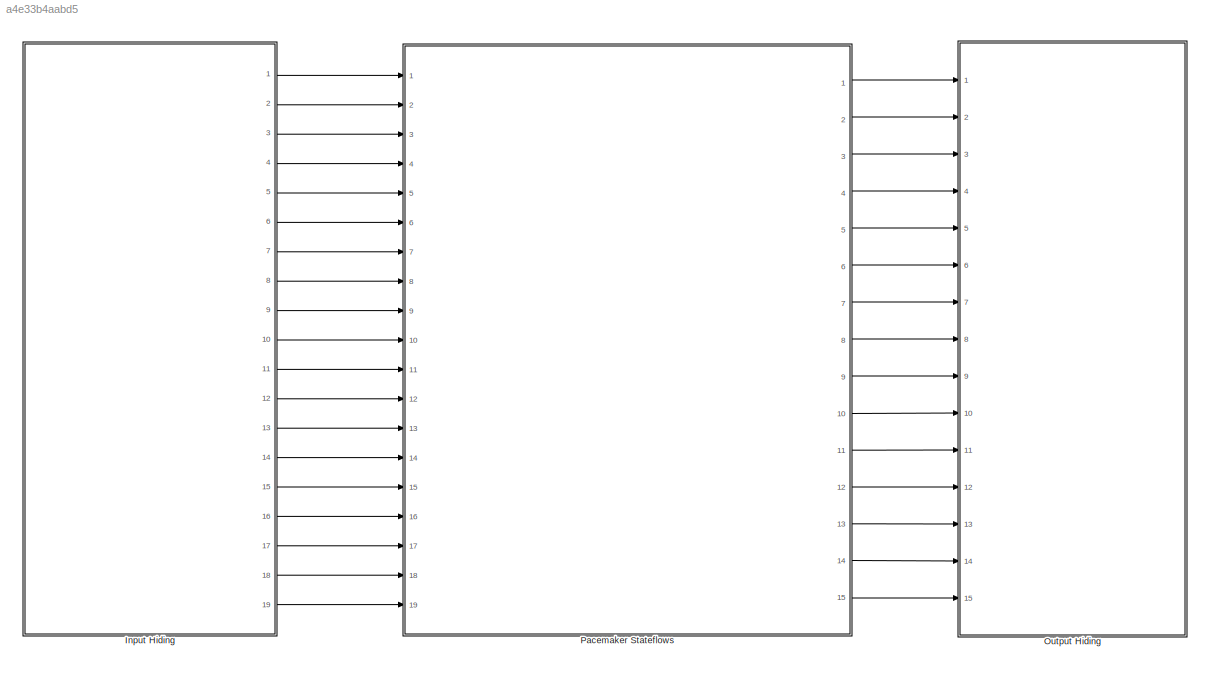
MODEL slx_a4e33b4aabd5
KIND model
CONFIG AbsTol = auto
CONFIG EnableMultiTasking = on
CONFIG FixedStep = 1e-3
CONFIG MaxStep = auto
CONFIG MinStep = auto
CONFIG RelTol = 1e-3
CONFIG SampleTimeConstraint = Unconstrained
CONFIG SolverName = FixedStepAuto
CONFIG StartTime = 0.0
CONFIG StopTime = 50
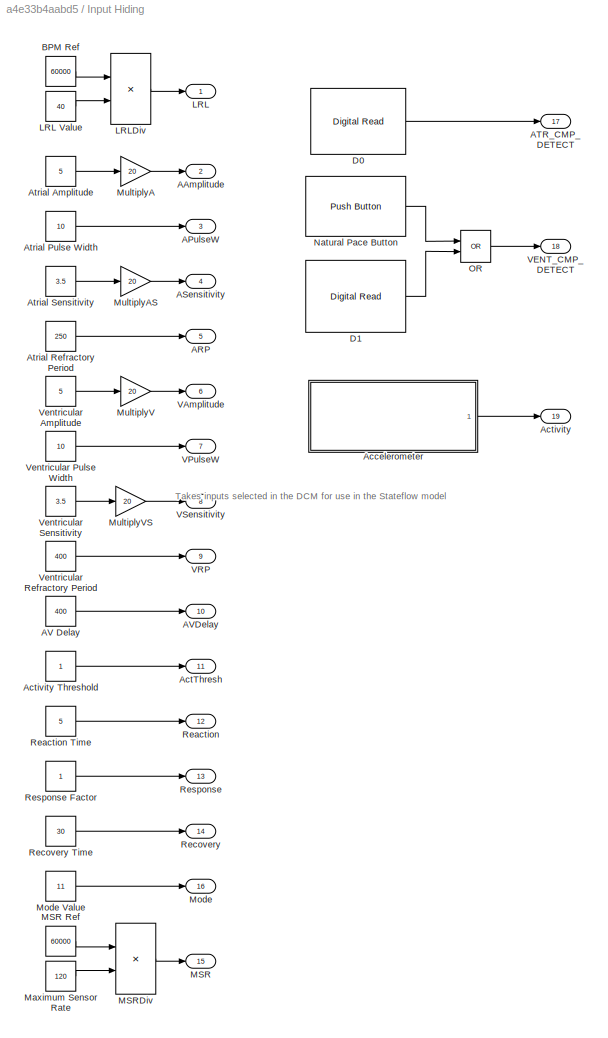
BLOCK [SubSystem] Input Hiding
  Ports = [0, 19]
  RequestExecContextInheritance = off
BLOCK [Outport] Input Hiding/AAmplitude
  OutDataTypeStr = uint16
  Port = 2
BLOCK [Outport] Input Hiding/APulseW
  OutDataTypeStr = uint16
  Port = 3
BLOCK [Outport] Input Hiding/ARP
  OutDataTypeStr = uint16
  Port = 5
BLOCK [Outport] Input Hiding/ASensitivity
  OutDataTypeStr = uint16
  Port = 4
BLOCK [Outport] Input Hiding/ATR_CMP_DETECT
  OutDataTypeStr = boolean
  Port = 17
BLOCK [Constant] Input Hiding/AV Delay
  NameLocation = left
  OutDataTypeStr = uint16
  Value = 400
BLOCK [Outport] Input Hiding/AVDelay
  OutDataTypeStr = uint16
  Port = 10
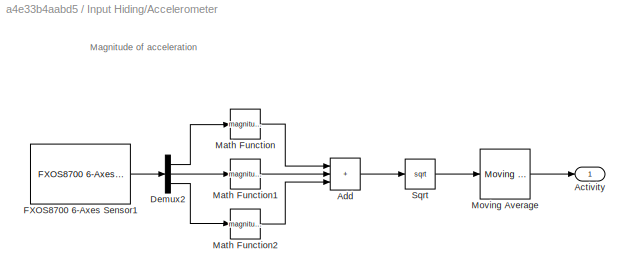
BLOCK [SubSystem] Input Hiding/Accelerometer
  Ports = [0, 1]
  RequestExecContextInheritance = off
BLOCK [Outport] Input Hiding/Accelerometer/Activity
  OutDataTypeStr = double
  SourceOfInitialOutputValue = Input signal
BLOCK [Sum] Input Hiding/Accelerometer/Add
  IconShape = rectangular
  Inputs = +++
  Ports = [3, 1]
BLOCK [Demux] Input Hiding/Accelerometer/Demux2
  Outputs = 3
  Ports = [1, 3]
BLOCK [Reference] Input Hiding/Accelerometer/FXOS8700 6-Axes Sensor1  REF=frdmk64flib/FXOS8700 6-Axes Sensor
  Ports = [0, 1]
  SourceBlock = frdmk64flib/FXOS8700 6-Axes Sensor
  SourceProductBaseCode = EC_FRDM_K64F
  SourceType = freedomk64f.fxos8700
BLOCK [Math] Input Hiding/Accelerometer/Math Function
  Operator = magnitude^2
  OutDataTypeStr = double
  Ports = [1, 1]
  SignedPower = on
BLOCK [Math] Input Hiding/Accelerometer/Math Function1
  Operator = magnitude^2
  OutDataTypeStr = double
  Ports = [1, 1]
  SignedPower = on
BLOCK [Math] Input Hiding/Accelerometer/Math Function2
  Operator = magnitude^2
  OutDataTypeStr = double
  Ports = [1, 1]
  SignedPower = on
BLOCK [Reference] Input Hiding/Accelerometer/Moving Average  REF=dspstat3/Moving
Average
  Ports = [1, 1]
  SourceBlock = dspstat3/Moving\nAverage
  SourceProductBaseCode = DS
  SourceType = dsp.simulink.MovingAverage
BLOCK [Sqrt] Input Hiding/Accelerometer/Sqrt
BLOCK [Outport] Input Hiding/ActThresh
  OutDataTypeStr = double
  Port = 11
BLOCK [Outport] Input Hiding/Activity
  OutDataTypeStr = double
  Port = 19
BLOCK [Constant] Input Hiding/Activity Threshold
  NameLocation = left
  OutDataTypeStr = double
BLOCK [Constant] Input Hiding/Atrial Amplitude
  NameLocation = left
  OutDataTypeStr = double
  Value = 5
BLOCK [Constant] Input Hiding/Atrial Pulse Width
  NameLocation = left
  OutDataTypeStr = uint16
  Value = 10
BLOCK [Constant] Input Hiding/Atrial Refractory Period
  NameLocation = left
  OutDataTypeStr = uint16
  Value = 250
BLOCK [Constant] Input Hiding/Atrial Sensitivity
  NameLocation = left
  OutDataTypeStr = double
  Value = 3.5
BLOCK [Constant] Input Hiding/BPM Ref
  NameLocation = left
  OutDataTypeStr = uint16
  Value = 60000
BLOCK [Reference] Input Hiding/D0  REF=frdmk64flib/Digital Read
  Ports = [0, 1]
  SourceBlock = frdmk64flib/Digital Read
  SourceProductBaseCode = EC_FRDM_K64F
  SourceType = freedomk64f.DigitalRead
BLOCK [Reference] Input Hiding/D1  REF=frdmk64flib/Digital Read
  Ports = [0, 1]
  SourceBlock = frdmk64flib/Digital Read
  SourceProductBaseCode = EC_FRDM_K64F
  SourceType = freedomk64f.DigitalRead
BLOCK [Outport] Input Hiding/LRL
  OutDataTypeStr = uint16
BLOCK [Constant] Input Hiding/LRL Value
  NameLocation = left
  OutDataTypeStr = uint16
  Value = 40
BLOCK [Product] Input Hiding/LRLDiv
  Inputs = */
  OutDataTypeStr = uint16
  Ports = [2, 1]
  RndMeth = Round
BLOCK [Outport] Input Hiding/MSR
  OutDataTypeStr = uint16
  Port = 15
BLOCK [Constant] Input Hiding/MSR Ref
  NameLocation = left
  OutDataTypeStr = uint16
  Value = 60000
BLOCK [Product] Input Hiding/MSRDiv
  Inputs = */
  OutDataTypeStr = uint16
  Ports = [2, 1]
  RndMeth = Round
BLOCK [Constant] Input Hiding/Maximum Sensor Rate
  NameLocation = left
  OutDataTypeStr = uint16
  Value = 120
BLOCK [Outport] Input Hiding/Mode
  OutDataTypeStr = uint16
  Port = 16
BLOCK [Constant] Input Hiding/Mode Value
  NameLocation = left
  OutDataTypeStr = uint16
  Value = 11
BLOCK [Gain] Input Hiding/MultiplyA
  Gain = 20
  OutDataTypeStr = uint16
BLOCK [Gain] Input Hiding/MultiplyAS
  Gain = 20
  OutDataTypeStr = uint16
BLOCK [Gain] Input Hiding/MultiplyV
  Gain = 20
  OutDataTypeStr = uint16
BLOCK [Gain] Input Hiding/MultiplyVS
  Gain = 20
  OutDataTypeStr = uint16
BLOCK [Reference] Input Hiding/Natural Pace Button  REF=frdmk64flib/Push Button
  Ports = [0, 1]
  SourceBlock = frdmk64flib/Push Button
  SourceProductBaseCode = EC_FRDM_K64F
  SourceType = freedomk64f.PushButton
BLOCK [Logic] Input Hiding/OR
  AllPortsSameDT = off
  IconShape = distinctive
  Operator = OR
  OutDataTypeStr = boolean
  Ports = [2, 1]
BLOCK [Outport] Input Hiding/Reaction
  OutDataTypeStr = uint16
  Port = 12
BLOCK [Constant] Input Hiding/Reaction Time
  NameLocation = left
  OutDataTypeStr = uint16
  Value = 5
BLOCK [Outport] Input Hiding/Recovery
  OutDataTypeStr = uint16
  Port = 14
BLOCK [Constant] Input Hiding/Recovery Time
  NameLocation = left
  OutDataTypeStr = uint16
  Value = 30
BLOCK [Outport] Input Hiding/Response
  OutDataTypeStr = uint16
  Port = 13
BLOCK [Constant] Input Hiding/Response Factor
  NameLocation = left
  OutDataTypeStr = uint16
BLOCK [Outport] Input Hiding/VAmplitude
  OutDataTypeStr = uint16
  Port = 6
BLOCK [Outport] Input Hiding/VENT_CMP_DETECT
  OutDataTypeStr = boolean
  Port = 18
BLOCK [Outport] Input Hiding/VPulseW
  OutDataTypeStr = uint16
  Port = 7
BLOCK [Outport] Input Hiding/VRP
  OutDataTypeStr = uint16
  Port = 9
BLOCK [Outport] Input Hiding/VSensitivity
  OutDataTypeStr = uint16
  Port = 8
BLOCK [Constant] Input Hiding/Ventricular Amplitude
  NameLocation = left
  OutDataTypeStr = double
  Value = 5
BLOCK [Constant] Input Hiding/Ventricular Pulse Width
  NameLocation = left
  OutDataTypeStr = uint16
  Value = 10
BLOCK [Constant] Input Hiding/Ventricular Refractory Period
  NameLocation = left
  OutDataTypeStr = uint16
  Value = 400
BLOCK [Constant] Input Hiding/Ventricular Sensitivity
  NameLocation = left
  OutDataTypeStr = double
  Value = 3.5
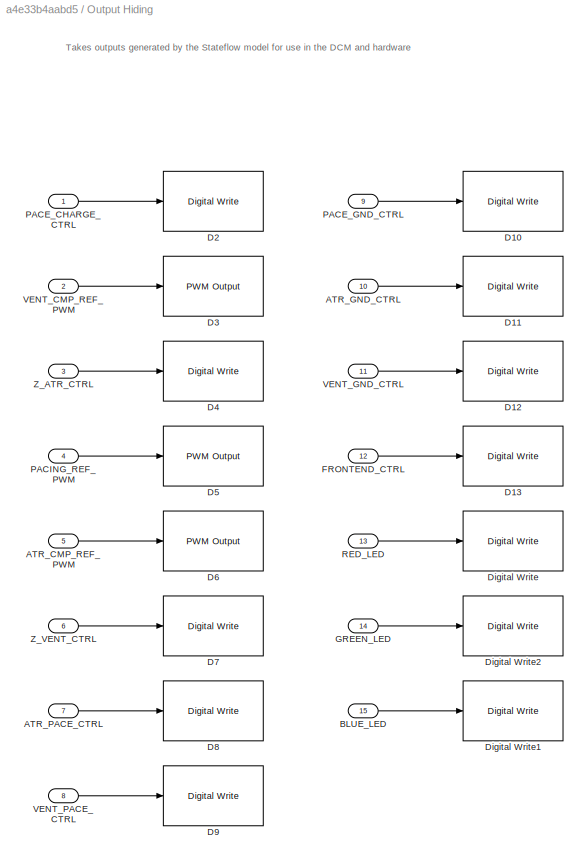
BLOCK [SubSystem] Output Hiding
  Ports = [15]
  RequestExecContextInheritance = off
BLOCK [Inport] Output Hiding/ATR_CMP_REF_PWM
  OutDataTypeStr = uint16
  Port = 5
BLOCK [Inport] Output Hiding/ATR_GND_CTRL
  OutDataTypeStr = uint16
  Port = 10
BLOCK [Inport] Output Hiding/ATR_PACE_CTRL
  OutDataTypeStr = uint16
  Port = 7
BLOCK [Inport] Output Hiding/BLUE_LED
  OutDataTypeStr = uint16
  Port = 15
BLOCK [Reference] Output Hiding/D10  REF=frdmk64flib/Digital Write
  Ports = [1]
  SourceBlock = frdmk64flib/Digital Write
  SourceProductBaseCode = EC_FRDM_K64F
  SourceType = freedomk64f.DigitalWrite
BLOCK [Reference] Output Hiding/D11  REF=frdmk64flib/Digital Write
  Ports = [1]
  SourceBlock = frdmk64flib/Digital Write
  SourceProductBaseCode = EC_FRDM_K64F
  SourceType = freedomk64f.DigitalWrite
BLOCK [Reference] Output Hiding/D12  REF=frdmk64flib/Digital Write
  Ports = [1]
  SourceBlock = frdmk64flib/Digital Write
  SourceProductBaseCode = EC_FRDM_K64F
  SourceType = freedomk64f.DigitalWrite
BLOCK [Reference] Output Hiding/D13  REF=frdmk64flib/Digital Write
  Ports = [1]
  SourceBlock = frdmk64flib/Digital Write
  SourceProductBaseCode = EC_FRDM_K64F
  SourceType = freedomk64f.DigitalWrite
BLOCK [Reference] Output Hiding/D2  REF=frdmk64flib/Digital Write
  Ports = [1]
  SourceBlock = frdmk64flib/Digital Write
  SourceProductBaseCode = EC_FRDM_K64F
  SourceType = freedomk64f.DigitalWrite
BLOCK [Reference] Output Hiding/D3  REF=frdmk64flib/PWM Output
  Ports = [1]
  SourceBlock = frdmk64flib/PWM Output
  SourceProductBaseCode = EC_FRDM_K64F
  SourceType = freedomk64f.PWMOutput
BLOCK [Reference] Output Hiding/D4  REF=frdmk64flib/Digital Write
  Ports = [1]
  SourceBlock = frdmk64flib/Digital Write
  SourceProductBaseCode = EC_FRDM_K64F
  SourceType = freedomk64f.DigitalWrite
BLOCK [Reference] Output Hiding/D5  REF=frdmk64flib/PWM Output
  Ports = [1]
  SourceBlock = frdmk64flib/PWM Output
  SourceProductBaseCode = EC_FRDM_K64F
  SourceType = freedomk64f.PWMOutput
BLOCK [Reference] Output Hiding/D6  REF=frdmk64flib/PWM Output
  Ports = [1]
  SourceBlock = frdmk64flib/PWM Output
  SourceProductBaseCode = EC_FRDM_K64F
  SourceType = freedomk64f.PWMOutput
BLOCK [Reference] Output Hiding/D7  REF=frdmk64flib/Digital Write
  Ports = [1]
  SourceBlock = frdmk64flib/Digital Write
  SourceProductBaseCode = EC_FRDM_K64F
  SourceType = freedomk64f.DigitalWrite
BLOCK [Reference] Output Hiding/D8   REF=frdmk64flib/Digital Write
  Ports = [1]
  SourceBlock = frdmk64flib/Digital Write
  SourceProductBaseCode = EC_FRDM_K64F
  SourceType = freedomk64f.DigitalWrite
BLOCK [Reference] Output Hiding/D9  REF=frdmk64flib/Digital Write
  Ports = [1]
  SourceBlock = frdmk64flib/Digital Write
  SourceProductBaseCode = EC_FRDM_K64F
  SourceType = freedomk64f.DigitalWrite
BLOCK [Reference] Output Hiding/Digital Write  REF=frdmk64flib/Digital Write
  Ports = [1]
  SourceBlock = frdmk64flib/Digital Write
  SourceProductBaseCode = EC_FRDM_K64F
  SourceType = freedomk64f.DigitalWrite
BLOCK [Reference] Output Hiding/Digital Write1  REF=frdmk64flib/Digital Write
  Ports = [1]
  SourceBlock = frdmk64flib/Digital Write
  SourceProductBaseCode = EC_FRDM_K64F
  SourceType = freedomk64f.DigitalWrite
BLOCK [Reference] Output Hiding/Digital Write2  REF=frdmk64flib/Digital Write
  Ports = [1]
  SourceBlock = frdmk64flib/Digital Write
  SourceProductBaseCode = EC_FRDM_K64F
  SourceType = freedomk64f.DigitalWrite
BLOCK [Inport] Output Hiding/FRONTEND_CTRL
  OutDataTypeStr = uint16
  Port = 12
BLOCK [Inport] Output Hiding/GREEN_LED
  OutDataTypeStr = uint16
  Port = 14
BLOCK [Inport] Output Hiding/PACE_CHARGE_CTRL
  OutDataTypeStr = uint16
BLOCK [Inport] Output Hiding/PACE_GND_CTRL
  OutDataTypeStr = uint16
  Port = 9
BLOCK [Inport] Output Hiding/PACING_REF_PWM
  OutDataTypeStr = uint16
  Port = 4
BLOCK [Inport] Output Hiding/RED_LED
  OutDataTypeStr = uint16
  Port = 13
BLOCK [Inport] Output Hiding/VENT_CMP_REF_PWM
  OutDataTypeStr = uint16
  Port = 2
BLOCK [Inport] Output Hiding/VENT_GND_CTRL
  OutDataTypeStr = uint16
  Port = 11
BLOCK [Inport] Output Hiding/VENT_PACE_CTRL
  OutDataTypeStr = uint16
  Port = 8
BLOCK [Inport] Output Hiding/Z_ATR_CTRL
  OutDataTypeStr = uint16
  Port = 3
BLOCK [Inport] Output Hiding/Z_VENT_CTRL
  OutDataTypeStr = uint16
  Port = 6
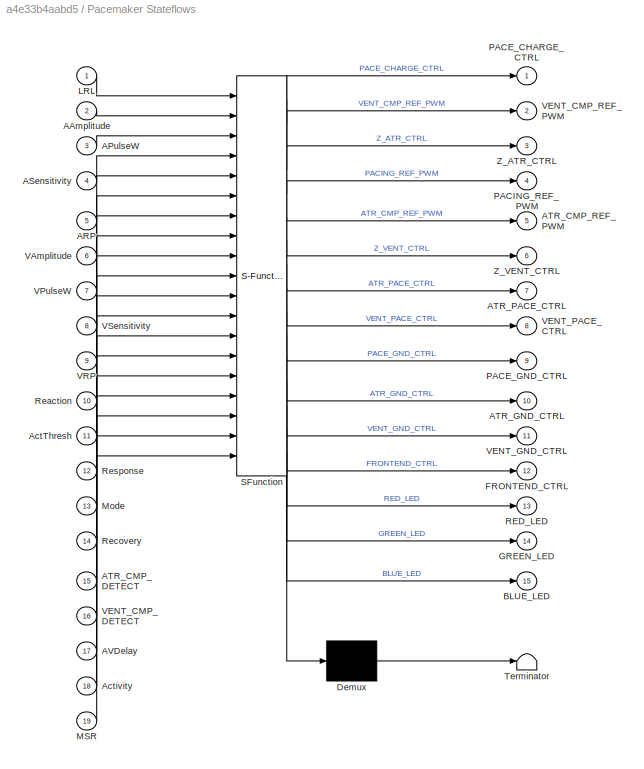
BLOCK [SubSystem] Pacemaker Stateflows
  ErrorFcn = Stateflow.Translate.translate
  PermitHierarchicalResolution = ExplicitOnly
  PortSchema = {"entries":[{"content":{"sides":[{"content":{"connectorIds":["In1","In2","In3","In4","In5","In6","In7","In8","In9","In17","In11","In10","In12","In14","In19","In13","In15","In16","In18"]},"type":"ConnectorPlacement.EquallySpacedRectSide","uuid":"6f24296b-9994-4871-8227-e053a3629335"},{"content":{"connectorIds":["Out1","Out2","Out3","Out4","Out5","Out6","Out7","Out8","Out9","Out10","Out11","Out12","...<+462ch>
  Ports = [19, 15]
  RequestExecContextInheritance = off
  SFBlockType = Chart
  TreatAsAtomicUnit = on
BLOCK [Demux] Pacemaker Stateflows/ Demux 
  Outputs = 1
  Ports = [1, 1]
BLOCK [S-Function] Pacemaker Stateflows/ SFunction 
  EnableBusSupport = on
  FunctionName = sf_sfun
  PortCounts = [19 16]
  Ports = [19, 16]
  SFcnIsStateOwnerBlock = off
  SFunctionDeploymentMode = off
  Tag = Stateflow S-Function 3
BLOCK [Terminator] Pacemaker Stateflows/ Terminator 
BLOCK [Inport] Pacemaker Stateflows/AAmplitude
  Port = 2
BLOCK [Inport] Pacemaker Stateflows/APulseW
  Port = 3
BLOCK [Inport] Pacemaker Stateflows/ARP
  Port = 5
BLOCK [Inport] Pacemaker Stateflows/ASensitivity
  Port = 4
BLOCK [Inport] Pacemaker Stateflows/ATR_CMP_DETECT
  Port = 15
BLOCK [Outport] Pacemaker Stateflows/ATR_CMP_REF_PWM
  Port = 5
BLOCK [Outport] Pacemaker Stateflows/ATR_GND_CTRL
  Port = 10
BLOCK [Outport] Pacemaker Stateflows/ATR_PACE_CTRL
  Port = 7
BLOCK [Inport] Pacemaker Stateflows/AVDelay
  Port = 17
BLOCK [Inport] Pacemaker Stateflows/ActThresh
  Port = 11
BLOCK [Inport] Pacemaker Stateflows/Activity
  Port = 18
BLOCK [Outport] Pacemaker Stateflows/BLUE_LED
  Port = 15
BLOCK [Outport] Pacemaker Stateflows/FRONTEND_CTRL
  Port = 12
BLOCK [Outport] Pacemaker Stateflows/GREEN_LED
  Port = 14
BLOCK [Inport] Pacemaker Stateflows/LRL
BLOCK [Inport] Pacemaker Stateflows/MSR
  Port = 19
BLOCK [Inport] Pacemaker Stateflows/Mode
  Port = 13
BLOCK [Outport] Pacemaker Stateflows/PACE_CHARGE_CTRL
BLOCK [Outport] Pacemaker Stateflows/PACE_GND_CTRL
  Port = 9
BLOCK [Outport] Pacemaker Stateflows/PACING_REF_PWM
  Port = 4
BLOCK [Outport] Pacemaker Stateflows/RED_LED
  Port = 13
BLOCK [Inport] Pacemaker Stateflows/Reaction
  Port = 10
BLOCK [Inport] Pacemaker Stateflows/Recovery
  Port = 14
BLOCK [Inport] Pacemaker Stateflows/Response
  Port = 12
BLOCK [Inport] Pacemaker Stateflows/VAmplitude
  Port = 6
BLOCK [Inport] Pacemaker Stateflows/VENT_CMP_DETECT
  Port = 16
BLOCK [Outport] Pacemaker Stateflows/VENT_CMP_REF_PWM
  Port = 2
BLOCK [Outport] Pacemaker Stateflows/VENT_GND_CTRL
  Port = 11
BLOCK [Outport] Pacemaker Stateflows/VENT_PACE_CTRL
  Port = 8
BLOCK [Inport] Pacemaker Stateflows/VPulseW
  Port = 7
BLOCK [Inport] Pacemaker Stateflows/VRP
  Port = 9
BLOCK [Inport] Pacemaker Stateflows/VSensitivity
  Port = 8
BLOCK [Outport] Pacemaker Stateflows/Z_ATR_CTRL
  Port = 3
BLOCK [Outport] Pacemaker Stateflows/Z_VENT_CTRL
  Port = 6
ANNOTATION Input Hiding: Takes inputs selected in the DCM for use in the Stateflow model
ANNOTATION Input Hiding/Accelerometer: Magnitude of acceleration
ANNOTATION Output Hiding: Takes outputs generated by the Stateflow model for use in the DCM and hardware
LINE Input Hiding/AV Delay:1 -> Input Hiding/AVDelay:1
LINE Input Hiding/Accelerometer/Add:1 -> Input Hiding/Accelerometer/Sqrt:1
LINE Input Hiding/Accelerometer/Demux2:1 -> Input Hiding/Accelerometer/Math Function:1
LINE Input Hiding/Accelerometer/Demux2:2 -> Input Hiding/Accelerometer/Math Function1:1
LINE Input Hiding/Accelerometer/Demux2:3 -> Input Hiding/Accelerometer/Math Function2:1
LINE Input Hiding/Accelerometer/FXOS8700 6-Axes Sensor1:1 -> Input Hiding/Accelerometer/Demux2:1
LINE Input Hiding/Accelerometer/Math Function1:1 -> Input Hiding/Accelerometer/Add:2
LINE Input Hiding/Accelerometer/Math Function2:1 -> Input Hiding/Accelerometer/Add:3
LINE Input Hiding/Accelerometer/Math Function:1 -> Input Hiding/Accelerometer/Add:1
LINE Input Hiding/Accelerometer/Moving Average:1 -> Input Hiding/Accelerometer/Activity:1
LINE Input Hiding/Accelerometer/Sqrt:1 -> Input Hiding/Accelerometer/Moving Average:1
LINE Input Hiding/Accelerometer:1 -> Input Hiding/Activity:1
LINE Input Hiding/Activity Threshold:1 -> Input Hiding/ActThresh:1
LINE Input Hiding/Atrial Amplitude:1 -> Input Hiding/MultiplyA:1
LINE Input Hiding/Atrial Pulse Width:1 -> Input Hiding/APulseW:1
LINE Input Hiding/Atrial Refractory Period:1 -> Input Hiding/ARP:1
LINE Input Hiding/Atrial Sensitivity:1 -> Input Hiding/MultiplyAS:1
LINE Input Hiding/BPM Ref:1 -> Input Hiding/LRLDiv:1
LINE Input Hiding/D0:1 -> Input Hiding/ATR_CMP_DETECT:1
LINE Input Hiding/D1:1 -> Input Hiding/OR:2
LINE Input Hiding/LRL Value:1 -> Input Hiding/LRLDiv:2
LINE Input Hiding/LRLDiv:1 -> Input Hiding/LRL:1
LINE Input Hiding/MSR Ref:1 -> Input Hiding/MSRDiv:1
LINE Input Hiding/MSRDiv:1 -> Input Hiding/MSR:1
LINE Input Hiding/Maximum Sensor Rate:1 -> Input Hiding/MSRDiv:2
LINE Input Hiding/Mode Value:1 -> Input Hiding/Mode:1
LINE Input Hiding/MultiplyA:1 -> Input Hiding/AAmplitude:1
LINE Input Hiding/MultiplyAS:1 -> Input Hiding/ASensitivity:1
LINE Input Hiding/MultiplyV:1 -> Input Hiding/VAmplitude:1
LINE Input Hiding/MultiplyVS:1 -> Input Hiding/VSensitivity:1
LINE Input Hiding/Natural Pace Button:1 -> Input Hiding/OR:1
LINE Input Hiding/OR:1 -> Input Hiding/VENT_CMP_DETECT:1
LINE Input Hiding/Reaction Time:1 -> Input Hiding/Reaction:1
LINE Input Hiding/Recovery Time:1 -> Input Hiding/Recovery:1
LINE Input Hiding/Response Factor:1 -> Input Hiding/Response:1
LINE Input Hiding/Ventricular Amplitude:1 -> Input Hiding/MultiplyV:1
LINE Input Hiding/Ventricular Pulse Width:1 -> Input Hiding/VPulseW:1
LINE Input Hiding/Ventricular Refractory Period:1 -> Input Hiding/VRP:1
LINE Input Hiding/Ventricular Sensitivity:1 -> Input Hiding/MultiplyVS:1
LINE Input Hiding:1 -> Pacemaker Stateflows:1
LINE Input Hiding:10 -> Pacemaker Stateflows:17
LINE Input Hiding:11 -> Pacemaker Stateflows:11
LINE Input Hiding:12 -> Pacemaker Stateflows:10
LINE Input Hiding:13 -> Pacemaker Stateflows:12
LINE Input Hiding:14 -> Pacemaker Stateflows:14
LINE Input Hiding:15 -> Pacemaker Stateflows:19
LINE Input Hiding:16 -> Pacemaker Stateflows:13
LINE Input Hiding:17 -> Pacemaker Stateflows:15
LINE Input Hiding:18 -> Pacemaker Stateflows:16
LINE Input Hiding:19 -> Pacemaker Stateflows:18
LINE Input Hiding:2 -> Pacemaker Stateflows:2
LINE Input Hiding:3 -> Pacemaker Stateflows:3
LINE Input Hiding:4 -> Pacemaker Stateflows:4
LINE Input Hiding:5 -> Pacemaker Stateflows:5
LINE Input Hiding:6 -> Pacemaker Stateflows:6
LINE Input Hiding:7 -> Pacemaker Stateflows:7
LINE Input Hiding:8 -> Pacemaker Stateflows:8
LINE Input Hiding:9 -> Pacemaker Stateflows:9
LINE Output Hiding/ATR_CMP_REF_PWM:1 -> Output Hiding/D6:1
LINE Output Hiding/ATR_GND_CTRL:1 -> Output Hiding/D11:1
LINE Output Hiding/ATR_PACE_CTRL:1 -> Output Hiding/D8 :1
LINE Output Hiding/BLUE_LED:1 -> Output Hiding/Digital Write1:1
LINE Output Hiding/FRONTEND_CTRL:1 -> Output Hiding/D13:1
LINE Output Hiding/GREEN_LED:1 -> Output Hiding/Digital Write2:1
LINE Output Hiding/PACE_CHARGE_CTRL:1 -> Output Hiding/D2:1
LINE Output Hiding/PACE_GND_CTRL:1 -> Output Hiding/D10:1
LINE Output Hiding/PACING_REF_PWM:1 -> Output Hiding/D5:1
LINE Output Hiding/RED_LED:1 -> Output Hiding/Digital Write:1
LINE Output Hiding/VENT_CMP_REF_PWM:1 -> Output Hiding/D3:1
LINE Output Hiding/VENT_GND_CTRL:1 -> Output Hiding/D12:1
LINE Output Hiding/VENT_PACE_CTRL:1 -> Output Hiding/D9:1
LINE Output Hiding/Z_ATR_CTRL:1 -> Output Hiding/D4:1
LINE Output Hiding/Z_VENT_CTRL:1 -> Output Hiding/D7:1
LINE Pacemaker Stateflows:1 -> Output Hiding:1
LINE Pacemaker Stateflows:10 -> Output Hiding:10
LINE Pacemaker Stateflows:11 -> Output Hiding:11
LINE Pacemaker Stateflows:12 -> Output Hiding:12
LINE Pacemaker Stateflows:13 -> Output Hiding:13
LINE Pacemaker Stateflows:14 -> Output Hiding:14
LINE Pacemaker Stateflows:15 -> Output Hiding:15
LINE Pacemaker Stateflows:2 -> Output Hiding:2
LINE Pacemaker Stateflows:3 -> Output Hiding:3
LINE Pacemaker Stateflows:4 -> Output Hiding:4
LINE Pacemaker Stateflows:5 -> Output Hiding:5
LINE Pacemaker Stateflows:6 -> Output Hiding:6
LINE Pacemaker Stateflows:7 -> Output Hiding:7
LINE Pacemaker Stateflows:8 -> Output Hiding:8
LINE Pacemaker Stateflows:9 -> Output Hiding:9
CHART Pacemaker Stateflows states=117 transitions=135
  STATE_LABEL '<!DOCTYPE HTML PUBLIC "-//W3C//DTD HTML 4.0//EN" "http://www.w3.org/TR/REC-html40/strict.dtd">\n<html><head><meta name="qrichtext" content="1" /><style type="text/css">\np, li { white-space: pre-wrap; }\n</style></head><body align="left" style=" font-family:\'Helvetica\'; font-size:12px; font-weight:400; font-style:normal;">\n<p align="left" style=" margin-top:0px; margin-bottom:0px; margin-left:0px; ma...<+179ch>'
  STATE_LABEL 'AOO\nentry:\nVENT_PACE_CTRL = 0; VENT_GND_CTRL = 0; PACE_GND_CTRL = 1;\nZ_VENT_CTRL = 0; Z_ATR_CTRL = 0;\nduring: PACING_REF_PWM = AAmplitude;\n'
  STATE_LABEL '<!DOCTYPE HTML PUBLIC "-//W3C//DTD HTML 4.0//EN" "http://www.w3.org/TR/REC-html40/strict.dtd">\n<html><head><meta name="qrichtext" content="1" /><style type="text/css">\np, li { white-space: pre-wrap; }\n</style></head><body align="left" style=" font-family:\'Helvetica\'; font-size:12px; font-weight:400; font-style:normal;">\n<p align="left" style=" margin-top:0px; margin-bottom:0px; margin-left:0px; ma...<+142ch>'
  STATE_LABEL 'PACE_ATR\nentry:\nPACE_CHARGE_CTRL = 0;\nATR_GND_CTRL = 0;\nATR_PACE_CTRL = 1;\nRED_LED = 1;'
  STATE_LABEL 'C22_CHARGE\nentry:\nPACE_CHARGE_CTRL = 1;\nATR_PACE_CTRL = 0;\nATR_GND_CTRL = 1;\nRED_LED = 0;'
  STATE_LABEL '<!DOCTYPE HTML PUBLIC "-//W3C//DTD HTML 4.0//EN" "http://www.w3.org/TR/REC-html40/strict.dtd">\n<html><head><meta name="qrichtext" content="1" /><style type="text/css">\np, li { white-space: pre-wrap; }\n</style></head><body align="left" style=" font-family:\'Helvetica\'; font-size:12px; font-weight:400; font-style:normal;">\n<p align="left" style=" margin-top:0px; margin-bottom:0px; margin-left:0px; ma...<+150ch>'
  STATE_LABEL '<!DOCTYPE HTML PUBLIC "-//W3C//DTD HTML 4.0//EN" "http://www.w3.org/TR/REC-html40/strict.dtd">\n<html><head><meta name="qrichtext" content="1" /><style type="text/css">\np, li { white-space: pre-wrap; }\n</style></head><body align="left" style=" font-family:\'Helvetica\'; font-size:12px; font-weight:400; font-style:normal;">\n<p align="left" style=" margin-top:0px; margin-bottom:0px; margin-left:0px; ma...<+359ch>'
  STATE_LABEL 'after(APulseW,msec)'
  STATE_LABEL 'after(LRL-APulseW,msec)'
  STATE_LABEL '<!DOCTYPE HTML PUBLIC "-//W3C//DTD HTML 4.0//EN" "http://www.w3.org/TR/REC-html40/strict.dtd">\n<html><head><meta name="qrichtext" content="1" /><style type="text/css">\np, li { white-space: pre-wrap; }\n</style></head><body align="left" style=" font-family:\'Helvetica\'; font-size:12px; font-weight:400; font-style:normal;">\n<p align="left" style=" margin-top:0px; margin-bottom:0px; margin-left:0px; ma...<+142ch>'
  STATE_LABEL 'PACE_ATR\nentry:\nPACE_CHARGE_CTRL = 0;\nATR_GND_CTRL = 0;\nATR_PACE_CTRL = 1;\nRED_LED = 1;'
  STATE_LABEL 'C22_CHARGE\nentry:\nPACE_CHARGE_CTRL = 1;\nATR_PACE_CTRL = 0;\nATR_GND_CTRL = 1;\nRED_LED = 0;'
  STATE_LABEL '<!DOCTYPE HTML PUBLIC "-//W3C//DTD HTML 4.0//EN" "http://www.w3.org/TR/REC-html40/strict.dtd">\n<html><head><meta name="qrichtext" content="1" /><style type="text/css">\np, li { white-space: pre-wrap; }\n</style></head><body align="left" style=" font-family:\'Helvetica\'; font-size:12px; font-weight:400; font-style:normal;">\n<p align="left" style=" margin-top:0px; margin-bottom:0px; margin-left:0px; ma...<+150ch>'
  STATE_LABEL '<!DOCTYPE HTML PUBLIC "-//W3C//DTD HTML 4.0//EN" "http://www.w3.org/TR/REC-html40/strict.dtd">\n<html><head><meta name="qrichtext" content="1" /><style type="text/css">\np, li { white-space: pre-wrap; }\n</style></head><body align="left" style=" font-family:\'Helvetica\'; font-size:12px; font-weight:400; font-style:normal;">\n<p align="left" style=" margin-top:0px; margin-bottom:0px; margin-left:0px; ma...<+359ch>'
  STATE_LABEL 'MODE_SELECTION\nentry:\nGREEN_LED = 0;\nRED_LED = 0;\nBLUE_LED = 0;\nFRONTEND_CTRL = 0;\nPACING_REF_PWM = 0;\nATR_CMP_REF_PWM = 0;\nVENT_CMP_REF_PWM = 0;\nPACE_CHARGE_CTRL= 0;\nPACE_GND_CTRL= 0;\nATR_PACE_CTRL = 0;\nATR_GND_CTRL = 0;\nVENT_PACE_CTRL = 0;\nVENT_GND_CTRL = 0;\nZ_ATR_CTRL = 0;\nZ_VENT_CTRL = 0;'
  STATE_LABEL '<!DOCTYPE HTML PUBLIC "-//W3C//DTD HTML 4.0//EN" "http://www.w3.org/TR/REC-html40/strict.dtd">\n<html><head><meta name="qrichtext" content="1" /><style type="text/css">\np, li { white-space: pre-wrap; }\n</style></head><body align="left" style=" font-family:\'Helvetica\'; font-size:12px; font-weight:400; font-style:normal;">\n<p align="left" style=" margin-top:0px; margin-bottom:0px; margin-left:0px; ma...<+357ch>'
  STATE_LABEL '<!DOCTYPE HTML PUBLIC "-//W3C//DTD HTML 4.0//EN" "http://www.w3.org/TR/REC-html40/strict.dtd">\n<html><head><meta name="qrichtext" content="1" /><style type="text/css">\np, li { white-space: pre-wrap; }\n</style></head><body align="left" style=" font-family:\'Helvetica\'; font-size:12px; font-weight:400; font-style:normal;">\n<p align="left" style=" margin-top:0px; margin-bottom:0px; margin-left:0px; ma...<+357ch>'
  STATE_LABEL 'VOO\nentry:\nATR_PACE_CTRL = 0; ATR_GND_CTRL = 0; PACE_GND_CTRL = 1;\nZ_ATR_CTRL = 0; Z_VENT_CTRL = 0;\nduring: PACING_REF_PWM = VAmplitude;'
  STATE_LABEL '<!DOCTYPE HTML PUBLIC "-//W3C//DTD HTML 4.0//EN" "http://www.w3.org/TR/REC-html40/strict.dtd">\n<html><head><meta name="qrichtext" content="1" /><style type="text/css">\np, li { white-space: pre-wrap; }\n</style></head><body align="left" style=" font-family:\'Helvetica\'; font-size:12px; font-weight:400; font-style:normal;">\n<p align="left" style=" margin-top:0px; margin-bottom:0px; margin-left:0px; ma...<+141ch>'
  STATE_LABEL 'PACE_VENT\nentry:\nPACE_CHARGE_CTRL = 0;\nVENT_GND_CTRL = 0;\nVENT_PACE_CTRL = 1;\nBLUE_LED = 1;'
  STATE_LABEL 'C22_CHARGE\nentry:\nVENT_PACE_CTRL = 0;\nVENT_GND_CTRL = 1;\nPACE_CHARGE_CTRL = 1;\nBLUE_LED = 0;'
  STATE_LABEL '<!DOCTYPE HTML PUBLIC "-//W3C//DTD HTML 4.0//EN" "http://www.w3.org/TR/REC-html40/strict.dtd">\n<html><head><meta name="qrichtext" content="1" /><style type="text/css">\np, li { white-space: pre-wrap; }\n</style></head><body align="left" style=" font-family:\'Helvetica\'; font-size:12px; font-weight:400; font-style:normal;">\n<p align="left" style=" margin-top:0px; margin-bottom:0px; margin-left:0px; ma...<+140ch>'
  STATE_LABEL '<!DOCTYPE HTML PUBLIC "-//W3C//DTD HTML 4.0//EN" "http://www.w3.org/TR/REC-html40/strict.dtd">\n<html><head><meta name="qrichtext" content="1" /><style type="text/css">\np, li { white-space: pre-wrap; }\n</style></head><body align="left" style=" font-family:\'Helvetica\'; font-size:12px; font-weight:400; font-style:normal;">\n<p align="left" style=" margin-top:0px; margin-bottom:0px; margin-left:0px; ma...<+360ch>'
  STATE_LABEL 'after(VPulseW,msec)'
  STATE_LABEL 'after(LRL-VPulseW,msec)'
  STATE_LABEL '<!DOCTYPE HTML PUBLIC "-//W3C//DTD HTML 4.0//EN" "http://www.w3.org/TR/REC-html40/strict.dtd">\n<html><head><meta name="qrichtext" content="1" /><style type="text/css">\np, li { white-space: pre-wrap; }\n</style></head><body align="left" style=" font-family:\'Helvetica\'; font-size:12px; font-weight:400; font-style:normal;">\n<p align="left" style=" margin-top:0px; margin-bottom:0px; margin-left:0px; ma...<+141ch>'
  STATE_LABEL 'PACE_VENT\nentry:\nPACE_CHARGE_CTRL = 0;\nVENT_GND_CTRL = 0;\nVENT_PACE_CTRL = 1;\nBLUE_LED = 1;'
  STATE_LABEL 'C22_CHARGE\nentry:\nVENT_PACE_CTRL = 0;\nVENT_GND_CTRL = 1;\nPACE_CHARGE_CTRL = 1;\nBLUE_LED = 0;'
  STATE_LABEL '<!DOCTYPE HTML PUBLIC "-//W3C//DTD HTML 4.0//EN" "http://www.w3.org/TR/REC-html40/strict.dtd">\n<html><head><meta name="qrichtext" content="1" /><style type="text/css">\np, li { white-space: pre-wrap; }\n</style></head><body align="left" style=" font-family:\'Helvetica\'; font-size:12px; font-weight:400; font-style:normal;">\n<p align="left" style=" margin-top:0px; margin-bottom:0px; margin-left:0px; ma...<+140ch>'
  STATE_LABEL '<!DOCTYPE HTML PUBLIC "-//W3C//DTD HTML 4.0//EN" "http://www.w3.org/TR/REC-html40/strict.dtd">\n<html><head><meta name="qrichtext" content="1" /><style type="text/css">\np, li { white-space: pre-wrap; }\n</style></head><body align="left" style=" font-family:\'Helvetica\'; font-size:12px; font-weight:400; font-style:normal;">\n<p align="left" style=" margin-top:0px; margin-bottom:0px; margin-left:0px; ma...<+360ch>'
  STATE_LABEL '<!DOCTYPE HTML PUBLIC "-//W3C//DTD HTML 4.0//EN" "http://www.w3.org/TR/REC-html40/strict.dtd">\n<html><head><meta name="qrichtext" content="1" /><style type="text/css">\np, li { white-space: pre-wrap; }\n</style></head><body align="left" style=" font-family:\'Helvetica\'; font-size:12px; font-weight:400; font-style:normal;">\n<p align="left" style=" margin-top:0px; margin-bottom:0px; margin-left:0px; ma...<+131ch>'
  STATE_LABEL '<!DOCTYPE HTML PUBLIC "-//W3C//DTD HTML 4.0//EN" "http://www.w3.org/TR/REC-html40/strict.dtd">\n<html><head><meta name="qrichtext" content="1" /><style type="text/css">\np, li { white-space: pre-wrap; }\n</style></head><body align="left" style=" font-family:\'Helvetica\'; font-size:12px; font-weight:400; font-style:normal;">\n<p align="left" style=" margin-top:0px; margin-bottom:0px; margin-left:0px; ma...<+131ch>'
  STATE_LABEL 'AAI\nentry: VENT_PACE_CTRL = 0; VENT_GND_CTRL = 0; PACE_GND_CTRL = 1;\n Z_VENT_CTRL = 0; Z_ATR_CTRL = 0; FRONTEND_CTRL = 1;\nduring: PACING_REF_PWM = AAmplitude; ATR_CMP_REF_PWM=ASensitivity;'
  STATE_LABEL 'PACE_ATR\nentry:\nATR_PACE_CTRL = 1;\nPACE_CHARGE_CTRL = 0;\nATR_GND_CTRL = 0;\nRED_LED = 1;\n'
  STATE_LABEL 'C22_CHARGE\nentry:\nATR_PACE_CTRL = 0;\nPACE_CHARGE_CTRL = 1;\nATR_GND_CTRL = 1;\n'
  STATE_LABEL 'REFRACTORY\nentry: RED_LED = 0; PACE_CHARGE_CTRL = 1;\n ATR_PACE_CTRL = 0;  ATR_GND_CTRL = 1;\nexit: GREEN_LED = 0;'
  STATE_LABEL 'after(LRL - ARP, msec)'
  STATE_LABEL 'after(APulseW,msec)\n[ATR_CMP_DETECT]\n{ GREEN_LED = 1; }'
  STATE_LABEL 'after(ARP, msec)'
  STATE_LABEL 'after(APulseW, msec)'
CHART  states=0 transitions=0
